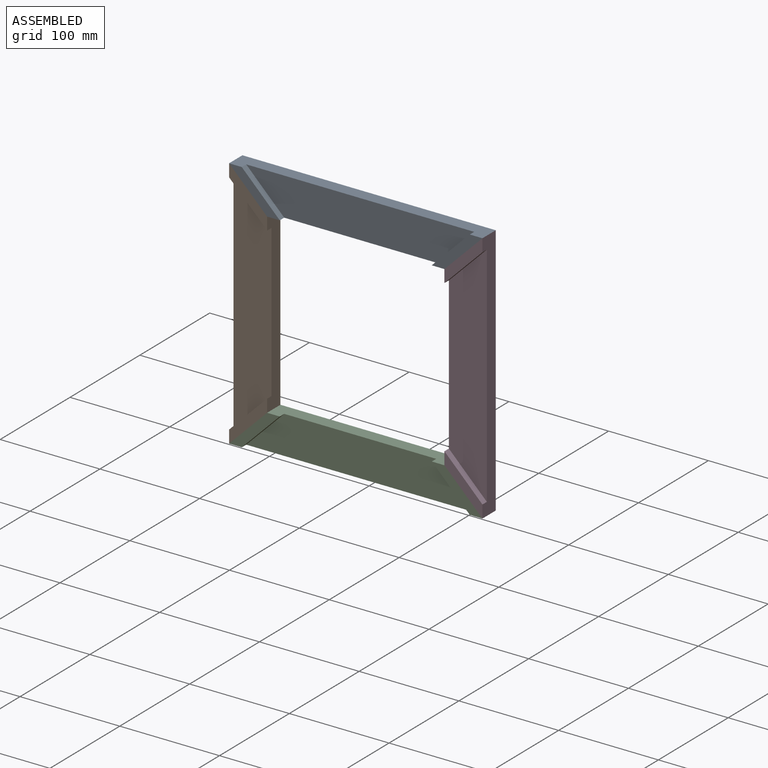
[diagram: assembled view]
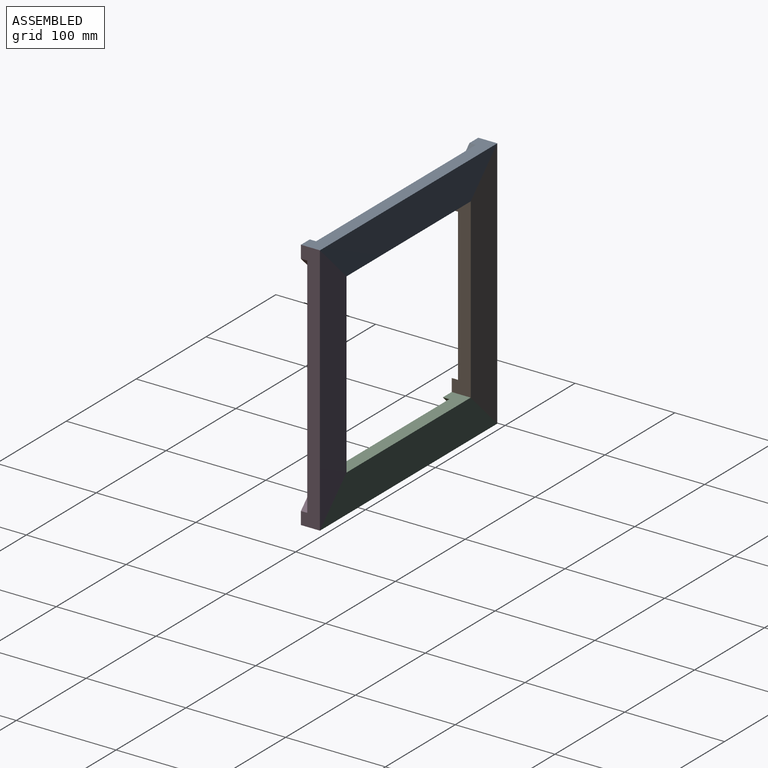
[diagram: assembled view, second angle]
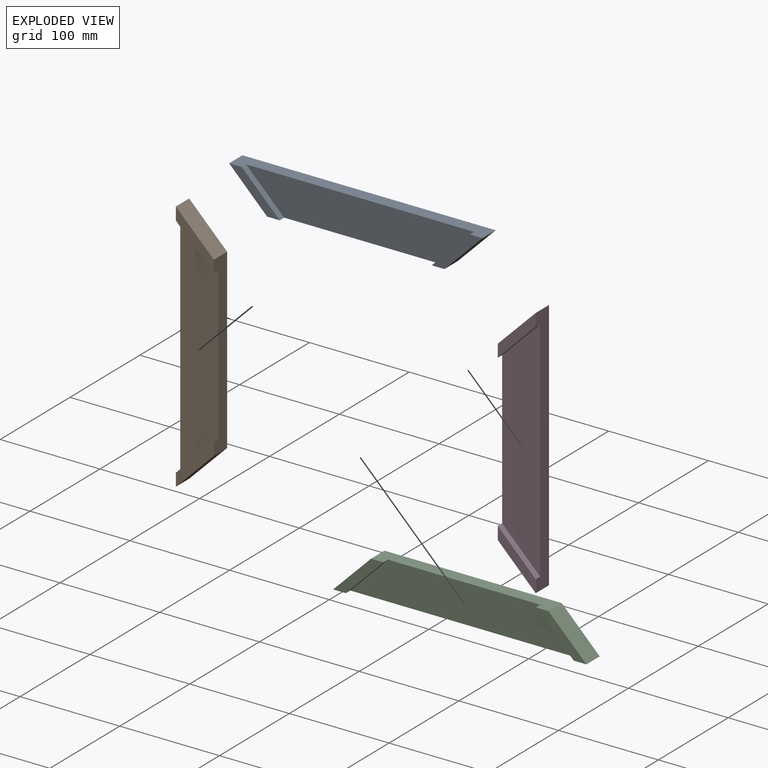
[diagram: exploded view]
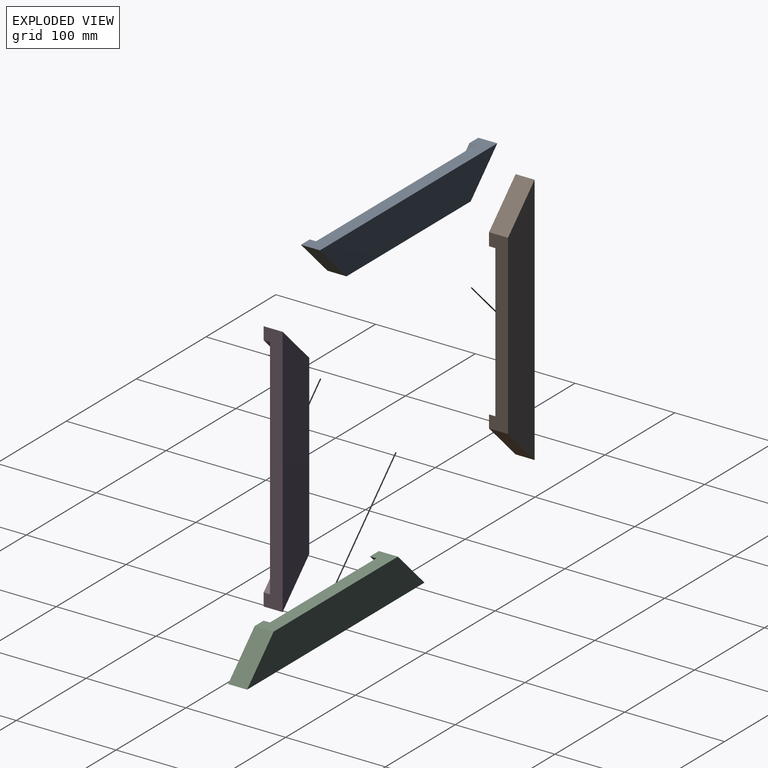
[diagram: exploded view, second angle]
ASSEMBLY  parts=4 mates=3
PART A: 10 faces, bbox 254x19.1x38.1 mm
  f0: plane 177.8x19.05mm, normal (0,0,-1), area 2419.3mm2, adj f1,f3,f4,f5,f6,f7,f8,f9
  f1: plane 38.1x38.1mm, normal (0.71,0,0.71), area 342.1mm2, adj f0,f2,f4,f9
  f2: plane 254x19.05mm, normal (0,0,1), area 3387.1mm2, adj f1,f3,f4,f5,f6,f7,f8,f9
  f3: plane 38.1x38.1mm, normal (-0.71,0,-0.71), area 1026.4mm2, adj f0,f2,f4,f5
  f4: plane 50.8x38.1mm, normal (0,-1,0), area 483.9mm2, adj f0,f1,f2,f3
  f5: plane 254x38.1mm, normal (0,1,0), area 8225.8mm2, adj f0,f2,f3,f7
  f6: plane 38.1x38.1mm, normal (-0.71,0,0.71), area 342.1mm2, adj f0,f2,f8,f9
  f7: plane 38.1x38.1mm, normal (0.71,0,-0.71), area 1026.4mm2, adj f0,f2,f5,f8
  f8: plane 50.8x38.1mm, normal (0,-1,0), area 483.9mm2, adj f0,f2,f6,f7
  f9: plane 228.6x38.1mm, normal (0,-1,0), area 7258.1mm2, adj f0,f1,f2,f6
PART B: same geometry as A
PART C: same geometry as A
PART D: same geometry as A
PLACE A t=(-279.44,27.67,-180.6)mm
PLACE B rot(axis=(0,-1,0),90deg) t=(-406.44,27.67,-307.6)mm
PLACE C rot(axis=(0,-1,0),180deg) t=(-279.44,27.67,-434.6)mm
PLACE D rot(axis=(0,1,0),90deg) t=(-152.44,27.67,-307.6)mm
MATE fastened B.f3 <-> C.f7  axis (0.71,0,-0.71) through (-387.39,18.15,-415.55)mm
MATE fastened A.f3 <-> B.f7  axis (-0.71,0,-0.71) through (-387.39,18.15,-199.65)mm
MATE fastened A.f7 <-> D.f3  axis (0.71,0,-0.71) through (-171.49,18.15,-199.65)mm
